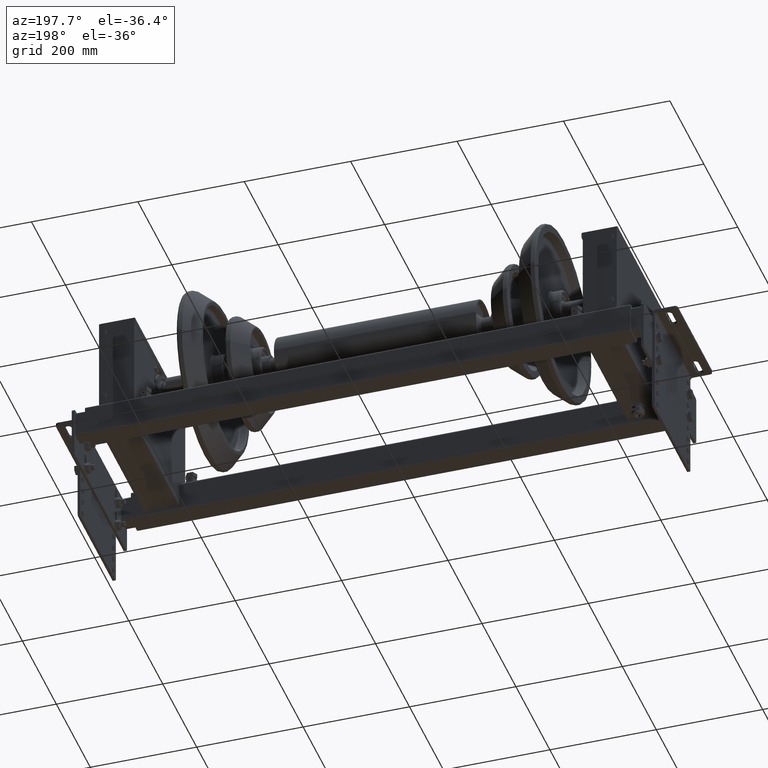
[diagram: clean part render]
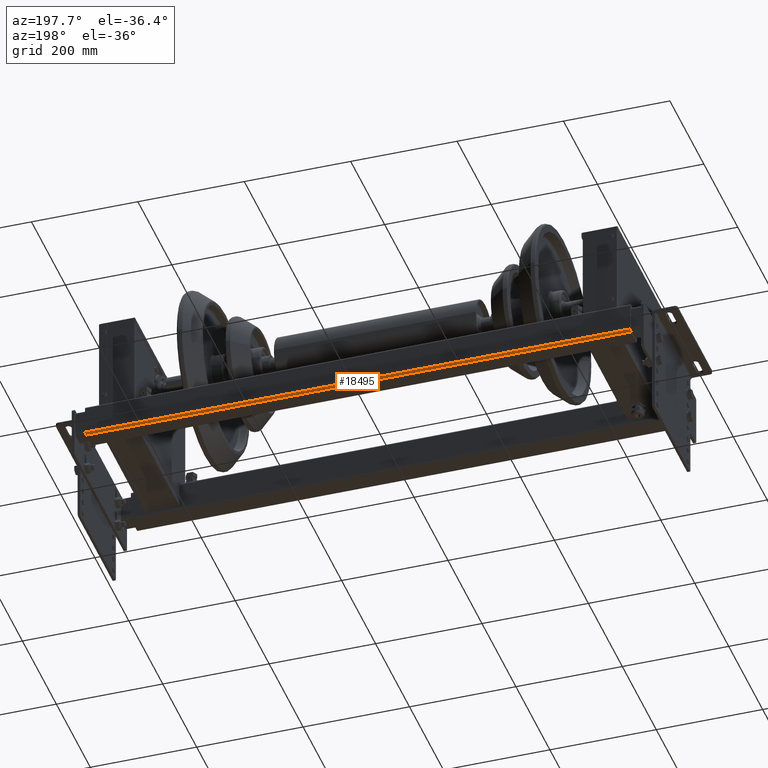
[diagram: same view with one face highlighted and labeled with its STEP entity id]
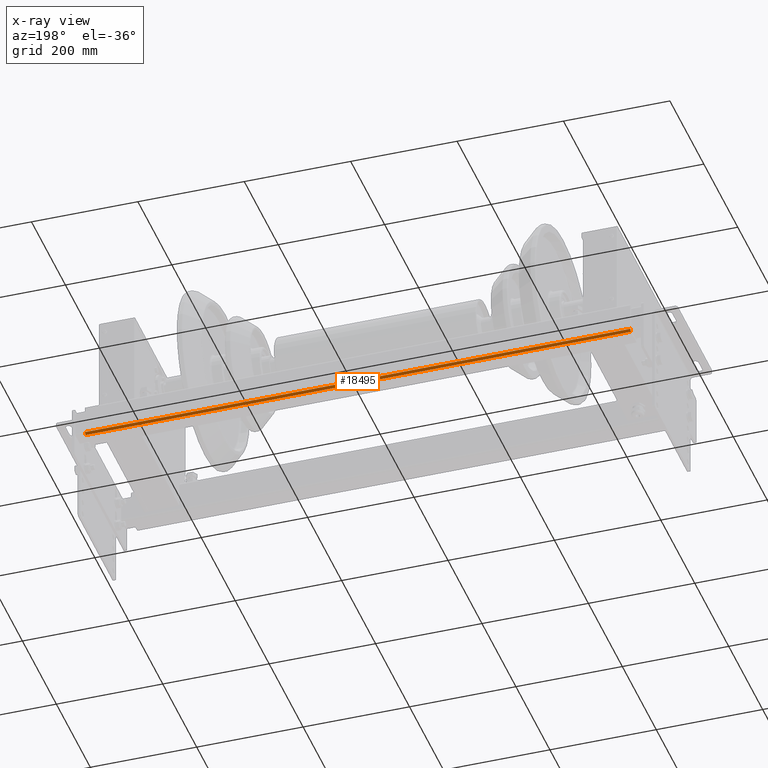
[diagram: x-ray of the same camera — body ghosted, the highlighted face saturated]
A machine part, auxiliary view. The second image highlights one B-rep face of the part: STEP entity #18495.
The next image is the same camera in x-ray: the body ghosted, the highlighted face saturated — about 0% of this face is hidden behind the body in this view.
In plain terms, the highlighted cylindrical surface (edge-blend (fillet) strip) has radius 4 mm, axis along (1, 0, -0).
Its self-contained STEP definition (entity closure, byte-faithful):
#18437=CARTESIAN_POINT('',(20.0,-25.999999999999886,620.0));
#18438=VERTEX_POINT('',#18437);
#18445=CARTESIAN_POINT('',(20.0,-25.999999999999886,-405.0));
#18446=VERTEX_POINT('',#18445);
#18447=CARTESIAN_POINT('',(20.0,-25.999999999999886,-405.0));
#18448=DIRECTION('',(0.0,0.0,1.0));
#18449=VECTOR('',#18448,1025.0);
#18450=LINE('',#18447,#18449);
#18451=EDGE_CURVE('',#18446,#18438,#18450,.T.);
#18463=CARTESIAN_POINT('',(16.0,-25.999999999999886,-405.0));
#18464=DIRECTION('',(0.0,0.0,1.0));
#18465=DIRECTION('',(1.0,0.0,0.0));
#18466=AXIS2_PLACEMENT_3D('',#18463,#18464,#18465);
#18467=CYLINDRICAL_SURFACE('',#18466,4.0);
#18468=CARTESIAN_POINT('',(16.0,-29.999999999999886,620.0));
#18469=VERTEX_POINT('',#18468);
#18470=CARTESIAN_POINT('',(16.0,-25.999999999999886,620.0));
#18471=DIRECTION('',(0.0,0.0,-1.0));
#18472=DIRECTION('',(1.0,0.0,0.0));
#18473=AXIS2_PLACEMENT_3D('',#18470,#18471,#18472);
#18474=CIRCLE('',#18473,4.0);
#18475=EDGE_CURVE('',#18438,#18469,#18474,.T.);
#18476=ORIENTED_EDGE('',*,*,#18475,.T.);
#18477=CARTESIAN_POINT('',(16.0,-29.999999999999886,-405.0));
#18478=VERTEX_POINT('',#18477);
#18479=CARTESIAN_POINT('',(16.0,-29.999999999999886,-405.0));
#18480=DIRECTION('',(0.0,0.0,1.0));
#18481=VECTOR('',#18480,1025.0);
#18482=LINE('',#18479,#18481);
#18483=EDGE_CURVE('',#18478,#18469,#18482,.T.);
#18484=ORIENTED_EDGE('',*,*,#18483,.F.);
#18485=CARTESIAN_POINT('',(16.0,-25.999999999999886,-405.0));
#18486=DIRECTION('',(0.0,0.0,-1.0));
#18487=DIRECTION('',(1.0,0.0,0.0));
#18488=AXIS2_PLACEMENT_3D('',#18485,#18486,#18487);
#18489=CIRCLE('',#18488,4.0);
#18490=EDGE_CURVE('',#18446,#18478,#18489,.T.);
#18491=ORIENTED_EDGE('',*,*,#18490,.F.);
#18492=ORIENTED_EDGE('',*,*,#18451,.T.);
#18493=EDGE_LOOP('',(#18476,#18484,#18491,#18492));
#18494=FACE_OUTER_BOUND('',#18493,.T.);
#18495=ADVANCED_FACE('',(#18494),#18467,.T.);